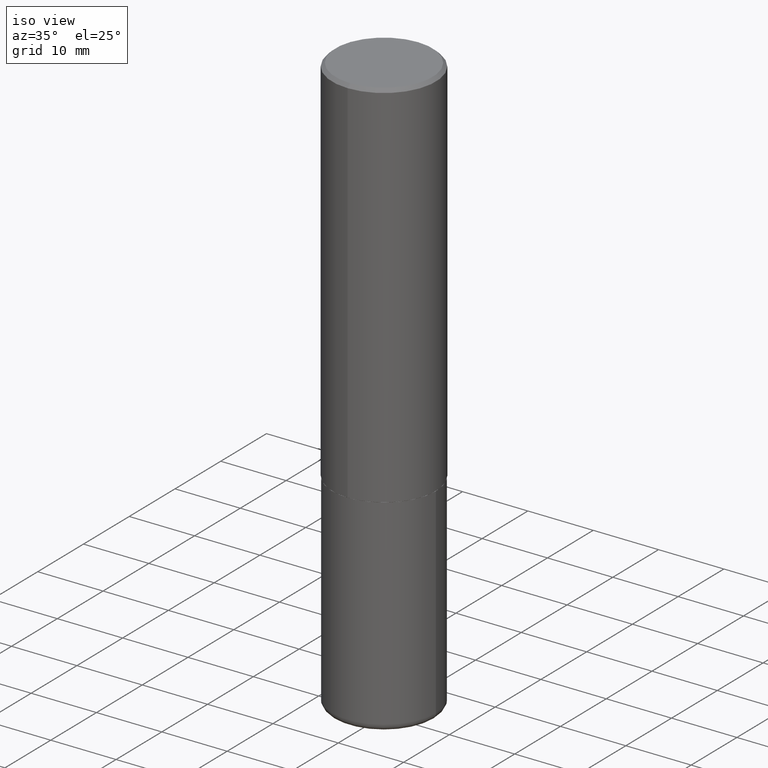
[diagram: clean part render]
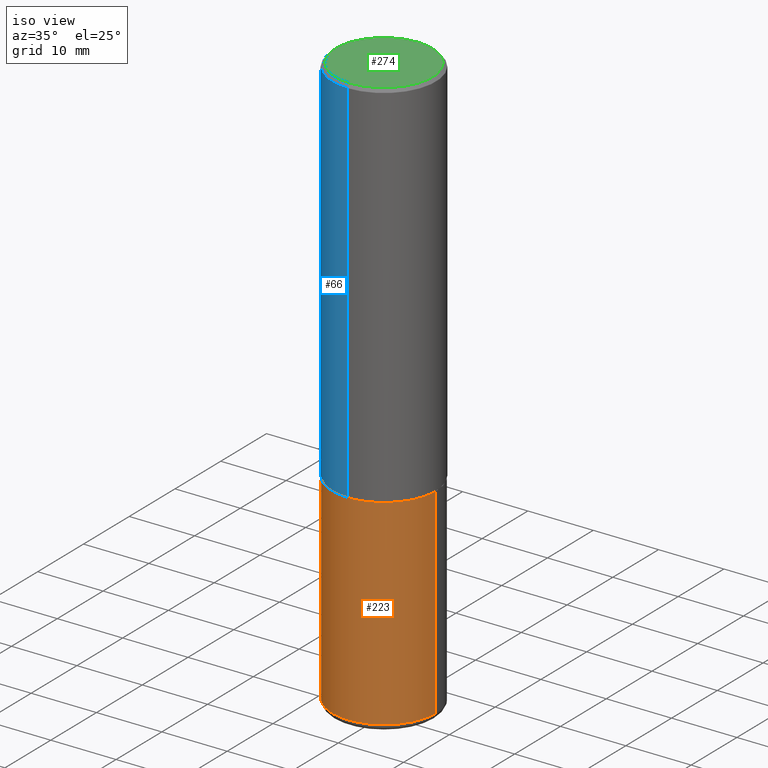
[diagram: same view with three faces highlighted in distinct colors, each labeled with its STEP entity id]
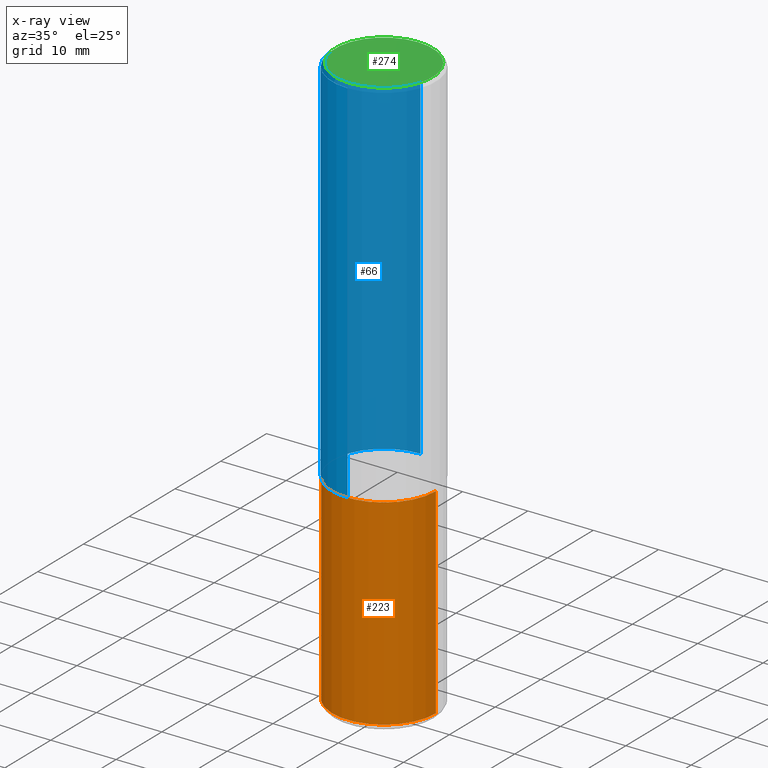
[diagram: x-ray of the same camera — body ghosted, the three highlighted faces saturated]
A machine part, iso view with three faces highlighted in distinct colors.
The next image is the same camera in x-ray (body ghosted, the three faces saturated) — at least one of them is partly hidden behind the body in this view.
Their STEP definitions:

[orange] entity #223 — the highlighted cylindrical surface (partial cylindrical patch) has radius 7.9375 mm, axis along (-0, 0, 1).
#29 = ORIENTED_EDGE ( 'NONE', *, *, #135, .T. ) ;
#30 = EDGE_CURVE ( 'NONE', #108, #211, #64, .T. ) ;
#47 = VERTEX_POINT ( 'NONE', #313 ) ;
#60 = DIRECTION ( 'NONE',  ( 1.000000000000000000, -6.982962677686264344E-15, 0.000000000000000000 ) ) ;
#62 = CARTESIAN_POINT ( 'NONE',  ( 8.461322069400571907E-29, -1.208052543239728275E-14, -3.459999999999999520 ) ) ;
#64 = CIRCLE ( 'NONE', #416, 0.3124999999999999445 ) ;
#65 = DIRECTION ( 'NONE',  ( 1.000000000000000000, -6.982962677686269077E-15, 0.000000000000000000 ) ) ;
#67 = CARTESIAN_POINT ( 'NONE',  ( 0.3125000000000000000, -1.003800884917403522E-14, -2.249999999999999556 ) ) ;
#75 = EDGE_CURVE ( 'NONE', #47, #411, #335, .T. ) ;
#102 = CARTESIAN_POINT ( 'NONE',  ( -0.3125000000000000000, 2.220446049250313081E-15, -1.537167215704658232E-29 ) ) ;
#108 = VERTEX_POINT ( 'NONE', #381 ) ;
#132 = CARTESIAN_POINT ( 'NONE',  ( 5.502304813916556222E-29, -7.855833012397076871E-15, -2.249999999999999556 ) ) ;
#135 = EDGE_CURVE ( 'NONE', #211, #411, #350, .T. ) ;
#144 = EDGE_CURVE ( 'NONE', #108, #47, #300, .T. ) ;
#152 = FACE_OUTER_BOUND ( 'NONE', #373, .T. ) ;
#157 = VECTOR ( 'NONE', #202, 39.37007874015748143 ) ;
#180 = CARTESIAN_POINT ( 'NONE',  ( 0.3125000000000001665, -1.426270126917424109E-14, -3.459999999999999520 ) ) ;
#202 = DIRECTION ( 'NONE',  ( -2.445468806185136877E-29, 3.491481338843145188E-15, 1.000000000000000000 ) ) ;
#211 = VERTEX_POINT ( 'NONE', #180 ) ;
#223 = ADVANCED_FACE ( 'NONE', ( #152 ), #283, .T. ) ;
#266 = ORIENTED_EDGE ( 'NONE', *, *, #144, .F. ) ;
#268 = DIRECTION ( 'NONE',  ( -2.445468806185136877E-29, 3.491481338843145188E-15, 1.000000000000000000 ) ) ;
#283 = CYLINDRICAL_SURFACE ( 'NONE', #341, 0.3125000000000000000 ) ;
#294 = DIRECTION ( 'NONE',  ( -2.445468806185136597E-29, 3.491481338843145583E-15, 1.000000000000000000 ) ) ;
#300 = LINE ( 'NONE', #102, #349 ) ;
#302 = DIRECTION ( 'NONE',  ( -2.445468806185136597E-29, 3.491481338843145583E-15, 1.000000000000000000 ) ) ;
#312 = CARTESIAN_POINT ( 'NONE',  ( 0.000000000000000000, 0.000000000000000000, 0.000000000000000000 ) ) ;
#313 = CARTESIAN_POINT ( 'NONE',  ( -0.3125000000000000000, -7.747733173146866727E-15, -2.249999999999999556 ) ) ;
#335 = CIRCLE ( 'NONE', #365, 0.3125000000000000000 ) ;
#337 = ORIENTED_EDGE ( 'NONE', *, *, #75, .F. ) ;
#341 = AXIS2_PLACEMENT_3D ( 'NONE', #312, #302, #343 ) ;
#343 = DIRECTION ( 'NONE',  ( 1.000000000000000000, -6.982962677686266711E-15, 4.876176775795936353E-29 ) ) ;
#349 = VECTOR ( 'NONE', #268, 39.37007874015748143 ) ;
#350 = LINE ( 'NONE', #397, #157 ) ;
#365 = AXIS2_PLACEMENT_3D ( 'NONE', #132, #388, #65 ) ;
#373 = EDGE_LOOP ( 'NONE', ( #266, #376, #29, #337 ) ) ;
#376 = ORIENTED_EDGE ( 'NONE', *, *, #30, .T. ) ;
#381 = CARTESIAN_POINT ( 'NONE',  ( -0.3125000000000001665, -9.860079383146966509E-15, -3.459999999999999520 ) ) ;
#388 = DIRECTION ( 'NONE',  ( -2.445468806185136597E-29, 3.491481338843145583E-15, 1.000000000000000000 ) ) ;
#397 = CARTESIAN_POINT ( 'NONE',  ( 0.3125000000000000000, -2.182175836776958347E-15, 1.523805242436230075E-29 ) ) ;
#411 = VERTEX_POINT ( 'NONE', #67 ) ;
#416 = AXIS2_PLACEMENT_3D ( 'NONE', #62, #294, #60 ) ;

[blue] entity #66 — the highlighted cylindrical surface (partial cylindrical patch) has radius 7.9375 mm, axis along (-0, 0, 1).
#66 = ADVANCED_FACE ( 'NONE', ( #68 ), #355, .T. ) ;
#68 = FACE_OUTER_BOUND ( 'NONE', #412, .T. ) ;
#70 = VERTEX_POINT ( 'NONE', #128 ) ;
#86 = CARTESIAN_POINT ( 'NONE',  ( 4.890825801099838597E-31, -6.983122797789506086E-17, -0.02000000000000007327 ) ) ;
#89 = CARTESIAN_POINT ( 'NONE',  ( 5.499733613336748778E-29, -7.852521586114269735E-15, -2.248999999999999666 ) ) ;
#105 = CARTESIAN_POINT ( 'NONE',  ( 2.182175836776959530E-15, 0.3125000000000000555, -0.02000000000000116615 ) ) ;
#107 = CARTESIAN_POINT ( 'NONE',  ( -2.143905624303604008E-15, -0.3125000000000002220, -0.01999999999999898040 ) ) ;
#113 = VECTOR ( 'NONE', #418, 39.37007874015748143 ) ;
#114 = ORIENTED_EDGE ( 'NONE', *, *, #115, .F. ) ;
#115 = EDGE_CURVE ( 'NONE', #179, #175, #287, .T. ) ;
#122 = EDGE_CURVE ( 'NONE', #70, #344, #123, .T. ) ;
#123 = LINE ( 'NONE', #255, #316 ) ;
#128 = CARTESIAN_POINT ( 'NONE',  ( -2.182175836776905099E-15, -0.3125000000000081601, -2.248999999999998778 ) ) ;
#137 = CIRCLE ( 'NONE', #208, 0.3125000000000001665 ) ;
#167 = CIRCLE ( 'NONE', #224, 0.3125000000000002776 ) ;
#175 = VERTEX_POINT ( 'NONE', #105 ) ;
#179 = VERTEX_POINT ( 'NONE', #239 ) ;
#208 = AXIS2_PLACEMENT_3D ( 'NONE', #86, #402, #384 ) ;
#220 = DIRECTION ( 'NONE',  ( -6.982962677686265922E-15, -1.000000000000000000, 3.491561398894740027E-15 ) ) ;
#224 = AXIS2_PLACEMENT_3D ( 'NONE', #89, #241, #368 ) ;
#239 = CARTESIAN_POINT ( 'NONE',  ( 2.220446049250342269E-15, 0.3124999999999924505, -2.249000000000000998 ) ) ;
#241 = DIRECTION ( 'NONE',  ( -2.445412900549910575E-29, 3.491561398894740027E-15, 1.000000000000000000 ) ) ;
#255 = CARTESIAN_POINT ( 'NONE',  ( -2.182175836776959530E-15, -0.3125000000000002220, 1.091112937154607072E-15 ) ) ;
#273 = ORIENTED_EDGE ( 'NONE', *, *, #122, .T. ) ;
#287 = LINE ( 'NONE', #347, #113 ) ;
#291 = DIRECTION ( 'NONE',  ( -2.445412900549910575E-29, 3.491561398894739632E-15, 1.000000000000000000 ) ) ;
#309 = ORIENTED_EDGE ( 'NONE', *, *, #345, .T. ) ;
#316 = VECTOR ( 'NONE', #291, 39.37007874015748143 ) ;
#321 = DIRECTION ( 'NONE',  ( -2.445412900549910575E-29, 3.491561398894740027E-15, 1.000000000000000000 ) ) ;
#338 = EDGE_CURVE ( 'NONE', #175, #344, #137, .T. ) ;
#344 = VERTEX_POINT ( 'NONE', #107 ) ;
#345 = EDGE_CURVE ( 'NONE', #179, #70, #167, .T. ) ;
#347 = CARTESIAN_POINT ( 'NONE',  ( 2.220446049250314264E-15, 0.3125000000000002220, -1.091112937154607072E-15 ) ) ;
#355 = CYLINDRICAL_SURFACE ( 'NONE', #378, 0.3125000000000002220 ) ;
#368 = DIRECTION ( 'NONE',  ( -6.982962677686265922E-15, -1.000000000000000000, 3.496765431890253764E-15 ) ) ;
#372 = ORIENTED_EDGE ( 'NONE', *, *, #338, .F. ) ;
#378 = AXIS2_PLACEMENT_3D ( 'NONE', #391, #321, #220 ) ;
#384 = DIRECTION ( 'NONE',  ( -6.982962677686265133E-15, -1.000000000000000000, 3.496765431890254947E-15 ) ) ;
#391 = CARTESIAN_POINT ( 'NONE',  ( 0.000000000000000000, 0.000000000000000000, 0.000000000000000000 ) ) ;
#402 = DIRECTION ( 'NONE',  ( -2.445412900549910575E-29, 3.491561398894740027E-15, 1.000000000000000000 ) ) ;
#412 = EDGE_LOOP ( 'NONE', ( #114, #309, #273, #372 ) ) ;
#418 = DIRECTION ( 'NONE',  ( -2.445412900549910575E-29, 3.491561398894739632E-15, 1.000000000000000000 ) ) ;

[green] entity #274 — the highlighted planar face has unit normal (0, -0, -1).
#19 = VERTEX_POINT ( 'NONE', #284 ) ;
#26 = FACE_OUTER_BOUND ( 'NONE', #306, .T. ) ;
#46 = CARTESIAN_POINT ( 'NONE',  ( -2.075300644325888676E-15, -0.2925000000000000377, 1.025573639231903446E-15 ) ) ;
#48 = CIRCLE ( 'NONE', #130, 0.2925000000000000377 ) ;
#78 = ORIENTED_EDGE ( 'NONE', *, *, #109, .T. ) ;
#87 = AXIS2_PLACEMENT_3D ( 'NONE', #140, #178, #285 ) ;
#88 = CARTESIAN_POINT ( 'NONE',  ( -1.049554112522401722E-46, 1.498553730746400387E-32, 4.291930055191840733E-18 ) ) ;
#109 = EDGE_CURVE ( 'NONE', #242, #19, #48, .T. ) ;
#130 = AXIS2_PLACEMENT_3D ( 'NONE', #88, #383, #218 ) ;
#140 = CARTESIAN_POINT ( 'NONE',  ( 2.042516583223233328E-15, 0.2925000000000000377, -1.019135744149115702E-15 ) ) ;
#142 = ORIENTED_EDGE ( 'NONE', *, *, #329, .T. ) ;
#155 = PLANE ( 'NONE',  #87 ) ;
#178 = DIRECTION ( 'NONE',  ( 2.445412900549910856E-29, -3.491561398894739632E-15, -1.000000000000000000 ) ) ;
#215 = AXIS2_PLACEMENT_3D ( 'NONE', #382, #272, #377 ) ;
#218 = DIRECTION ( 'NONE',  ( -6.982962677686266711E-15, -1.000000000000000000, 3.491561398894740027E-15 ) ) ;
#242 = VERTEX_POINT ( 'NONE', #46 ) ;
#272 = DIRECTION ( 'NONE',  ( -2.445412900549910575E-29, 3.491561398894740027E-15, 1.000000000000000000 ) ) ;
#274 = ADVANCED_FACE ( 'NONE', ( #26 ), #155, .F. ) ;
#284 = CARTESIAN_POINT ( 'NONE',  ( 2.112346210000096232E-15, 0.2925000000000000377, -1.016989779121519787E-15 ) ) ;
#285 = DIRECTION ( 'NONE',  ( 6.982962677686265922E-15, 1.000000000000000000, -3.491561398894739632E-15 ) ) ;
#306 = EDGE_LOOP ( 'NONE', ( #142, #78 ) ) ;
#329 = EDGE_CURVE ( 'NONE', #19, #242, #389, .T. ) ;
#377 = DIRECTION ( 'NONE',  ( -6.982962677686266711E-15, -1.000000000000000000, 3.491561398894740027E-15 ) ) ;
#382 = CARTESIAN_POINT ( 'NONE',  ( -1.049554112522401722E-46, 1.498553730746400387E-32, 4.291930055191840733E-18 ) ) ;
#383 = DIRECTION ( 'NONE',  ( -2.445412900549910575E-29, 3.491561398894740027E-15, 1.000000000000000000 ) ) ;
#389 = CIRCLE ( 'NONE', #215, 0.2925000000000000377 ) ;